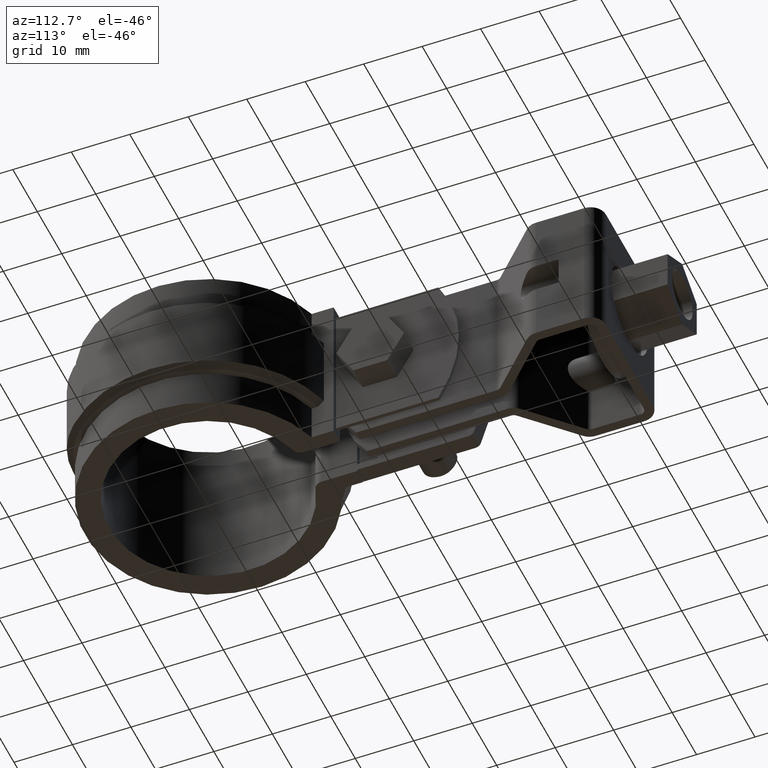
[diagram: clean part render]
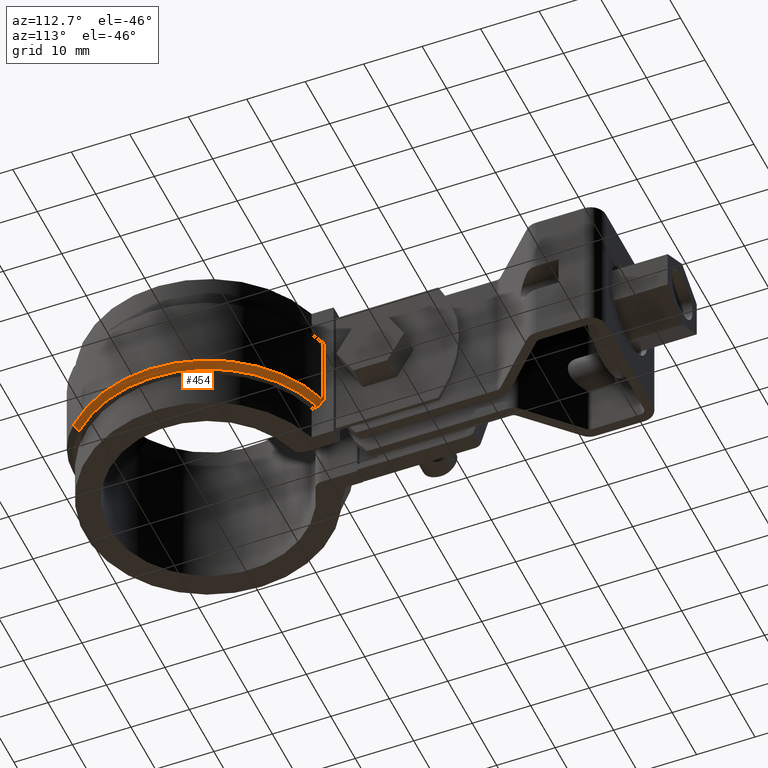
[diagram: same view with one face highlighted and labeled with its STEP entity id]
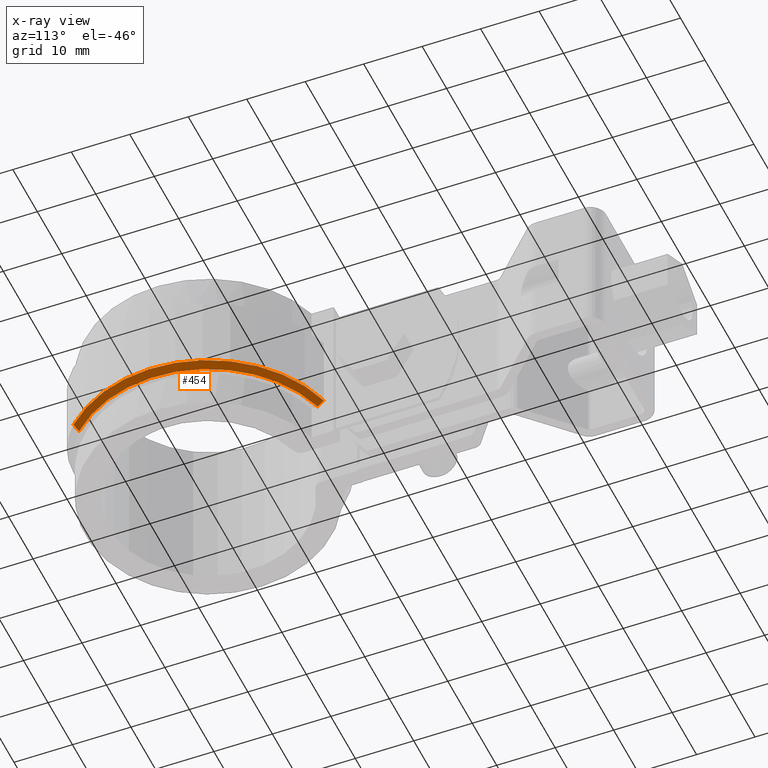
[diagram: x-ray of the same camera — body ghosted, the highlighted face saturated]
A machine part, auxiliary view. The second image highlights one B-rep face of the part: STEP entity #454.
The next image is the same camera in x-ray: the body ghosted, the highlighted face saturated — about 0% of this face is hidden behind the body in this view.
In plain terms, the highlighted conical surface has half-angle 45 deg.
Its self-contained STEP definition (entity closure, byte-faithful):
#454 = ADVANCED_FACE( '', ( #884 ), #885, .T. );
#884 = FACE_OUTER_BOUND( '', #1977, .T. );
#885 = CONICAL_SURFACE( '', #1978, 22.0950000000000, 0.785398163397448 );
#1977 = EDGE_LOOP( '', ( #4141, #4142, #4143, #4144 ) );
#1978 = AXIS2_PLACEMENT_3D( '', #4145, #4146, #4147 );
#4141 = ORIENTED_EDGE( '', *, *, #6434, .F. );
#4142 = ORIENTED_EDGE( '', *, *, #6447, .F. );
#4143 = ORIENTED_EDGE( '', *, *, #6444, .F. );
#4144 = ORIENTED_EDGE( '', *, *, #6448, .F. );
#4145 = CARTESIAN_POINT( '', ( -8.67361737988404E-016, -6.93889390390723E-015, -20.0000000000000 ) );
#4146 = DIRECTION( '', ( 0.000000000000000, 0.000000000000000, 1.00000000000000 ) );
#4147 = DIRECTION( '', ( 1.00000000000000, 0.000000000000000, 0.000000000000000 ) );
#6434 = EDGE_CURVE( '', #7579, #7581, #7582, .T. );
#6444 = EDGE_CURVE( '', #7595, #7596, #7597, .T. );
#6447 = EDGE_CURVE( '', #7596, #7579, #7600, .T. );
#6448 = EDGE_CURVE( '', #7581, #7595, #7601, .F. );
#7579 = VERTEX_POINT( '', #10765 );
#7581 = VERTEX_POINT( '', #10768 );
#7582 = B_SPLINE_CURVE_WITH_KNOTS( '', 3, ( #10769, #10770, #10771, #10772 ), .UNSPECIFIED., .F., .F., ( 4, 4 ), ( 3.68807269888147E-017, 0.00144175553964643 ), .UNSPECIFIED. );
#7595 = VERTEX_POINT( '', #10790 );
#7596 = VERTEX_POINT( '', #10791 );
#7597 = LINE( '', #10792, #10793 );
#7600 = CIRCLE( '', #10796, 23.0950000000000 );
#7601 = CIRCLE( '', #10797, 22.0950000000000 );
#10765 = CARTESIAN_POINT( '', ( 6.10000000000000, 22.2748518513591, -19.0000000000000 ) );
#10768 = CARTESIAN_POINT( '', ( 6.10000000000000, 21.2362667387656, -20.0000000000000 ) );
#10769 = CARTESIAN_POINT( '', ( 6.10000000000000, 22.2748518513592, -19.0000000000000 ) );
#10770 = CARTESIAN_POINT( '', ( 6.10000000000000, 21.9289403275758, -19.3336275360881 ) );
#10771 = CARTESIAN_POINT( '', ( 6.10000000000000, 21.5827583504448, -19.6669749586619 ) );
#10772 = CARTESIAN_POINT( '', ( 6.10000000000000, 21.2362667387656, -20.0000000000000 ) );
#10790 = CARTESIAN_POINT( '', ( 15.7021955308702, -15.5444549763033, -20.0000000000000 ) );
#10791 = CARTESIAN_POINT( '', ( 16.4128629004502, -16.2479831490258, -19.0000000000000 ) );
#10792 = CARTESIAN_POINT( '', ( 15.7021955308702, -15.5444549763033, -20.0000000000000 ) );
#10793 = VECTOR( '', #12691, 1000.00000000000 );
#10796 = AXIS2_PLACEMENT_3D( '', #12698, #12699, #12700 );
#10797 = AXIS2_PLACEMENT_3D( '', #12701, #12702, #12703 );
#12691 = DIRECTION( '', ( 0.502517716198026, -0.497469541687851, 0.707106781186547 ) );
#12698 = CARTESIAN_POINT( '', ( -8.67361737988404E-016, -6.93889390390723E-015, -19.0000000000000 ) );
#12699 = DIRECTION( '', ( 0.000000000000000, 0.000000000000000, 1.00000000000000 ) );
#12700 = DIRECTION( '', ( 1.00000000000000, 0.000000000000000, 0.000000000000000 ) );
#12701 = CARTESIAN_POINT( '', ( -8.67361737988404E-016, -6.93889390390723E-015, -20.0000000000000 ) );
#12702 = DIRECTION( '', ( 0.000000000000000, 0.000000000000000, 1.00000000000000 ) );
#12703 = DIRECTION( '', ( 1.00000000000000, 0.000000000000000, 0.000000000000000 ) );